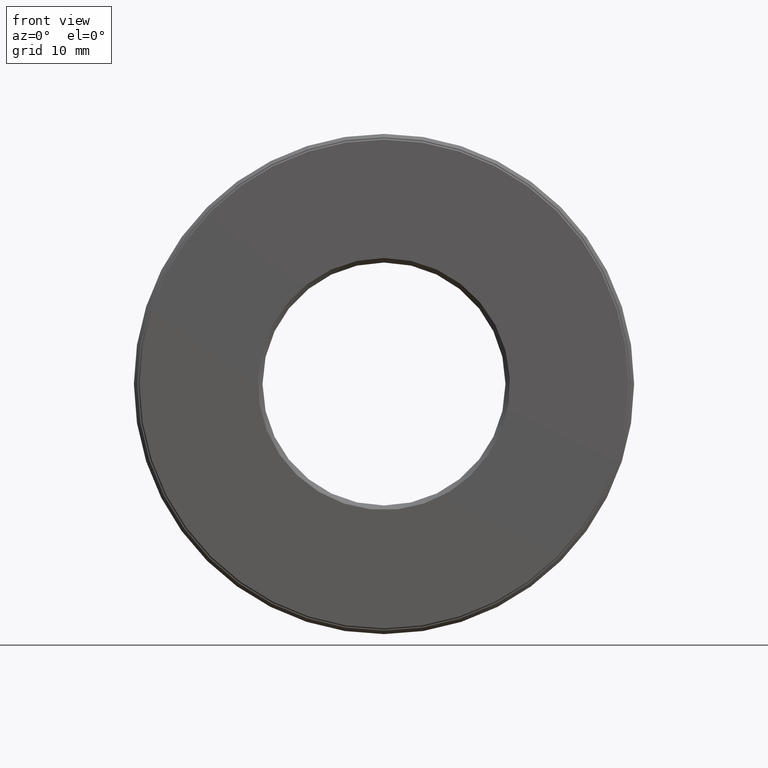
[diagram: clean part render]
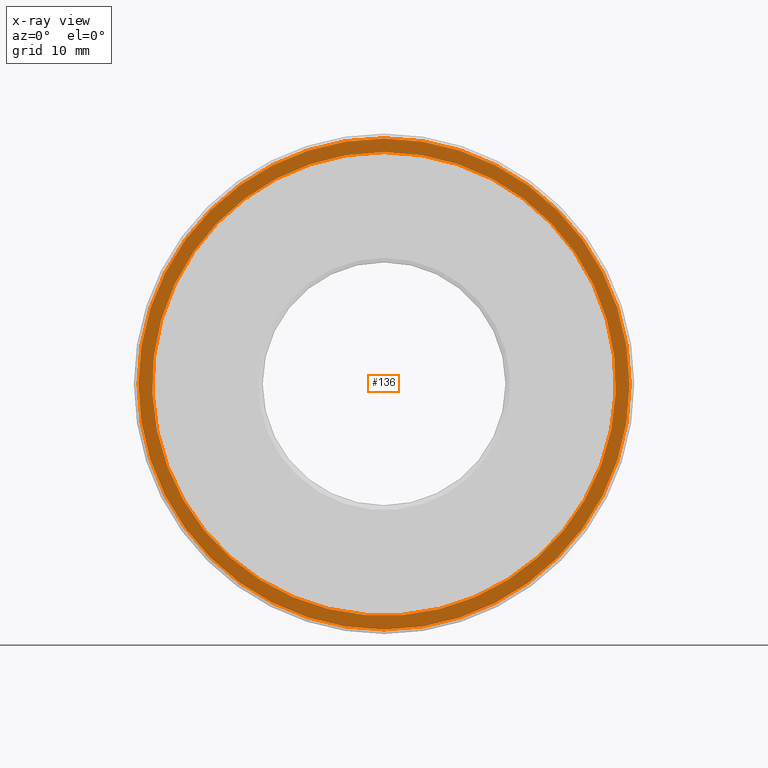
[diagram: x-ray — body ghosted, one internal face saturated and labeled with its STEP entity id]
A machine part, front view, then the same camera in x-ray: the body is ghosted and one INTERNAL B-rep face — a face not visible from any outside direction — is saturated and labeled: STEP entity #136.
In plain terms, the highlighted planar face has unit normal (-0, 1, 0).
Its self-contained STEP definition (entity closure, byte-faithful):
#18 = FACE_BOUND ( 'NONE', #67, .T. ) ;
#39 = DIRECTION ( 'NONE',  ( -0.0000000000000000000, 1.000000000000000000, 0.0000000000000000000 ) ) ;
#40 = DIRECTION ( 'NONE',  ( 0.0000000000000000000, 0.0000000000000000000, 1.000000000000000000 ) ) ;
#51 = CIRCLE ( 'NONE', #475, 1.013750000000000200 ) ;
#52 = CARTESIAN_POINT ( 'NONE',  ( 0.0000000000000000000, 0.7774999999999999700, 0.0000000000000000000 ) ) ;
#67 = EDGE_LOOP ( 'NONE', ( #365 ) ) ;
#74 = DIRECTION ( 'NONE',  ( 0.0000000000000000000, 0.0000000000000000000, 1.000000000000000000 ) ) ;
#84 = CARTESIAN_POINT ( 'NONE',  ( 0.0000000000000000000, 0.7774999999999999700, 0.0000000000000000000 ) ) ;
#87 = CIRCLE ( 'NONE', #502, 1.073750000000000000 ) ;
#103 = CARTESIAN_POINT ( 'NONE',  ( 0.0000000000000000000, 0.7774999999999999700, 1.073750000000000000 ) ) ;
#136 = ADVANCED_FACE ( 'NONE', ( #347, #18 ), #422, .F. ) ;
#207 = AXIS2_PLACEMENT_3D ( 'NONE', #338, #39, #40 ) ;
#338 = CARTESIAN_POINT ( 'NONE',  ( 0.0000000000000000000, 0.7774999999999999700, 0.0000000000000000000 ) ) ;
#339 = VERTEX_POINT ( 'NONE', #604 ) ;
#347 = FACE_OUTER_BOUND ( 'NONE', #578, .T. ) ;
#365 = ORIENTED_EDGE ( 'NONE', *, *, #593, .T. ) ;
#369 = VERTEX_POINT ( 'NONE', #103 ) ;
#377 = EDGE_CURVE ( 'NONE', #369, #369, #87, .T. ) ;
#395 = DIRECTION ( 'NONE',  ( 0.0000000000000000000, 0.0000000000000000000, 1.000000000000000000 ) ) ;
#413 = ORIENTED_EDGE ( 'NONE', *, *, #377, .F. ) ;
#417 = DIRECTION ( 'NONE',  ( -0.0000000000000000000, 1.000000000000000000, -0.0000000000000000000 ) ) ;
#422 = PLANE ( 'NONE',  #207 ) ;
#474 = DIRECTION ( 'NONE',  ( -0.0000000000000000000, 1.000000000000000000, -0.0000000000000000000 ) ) ;
#475 = AXIS2_PLACEMENT_3D ( 'NONE', #52, #474, #395 ) ;
#502 = AXIS2_PLACEMENT_3D ( 'NONE', #84, #417, #74 ) ;
#578 = EDGE_LOOP ( 'NONE', ( #413 ) ) ;
#593 = EDGE_CURVE ( 'NONE', #339, #339, #51, .T. ) ;
#604 = CARTESIAN_POINT ( 'NONE',  ( 0.0000000000000000000, 0.7774999999999999700, 1.013750000000000200 ) ) ;